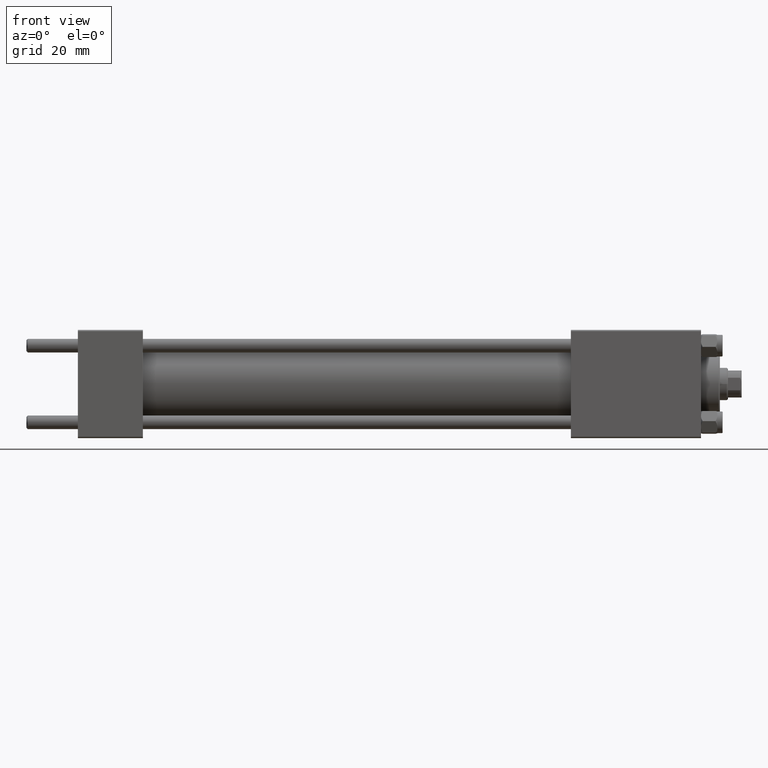
[diagram: clean part render]
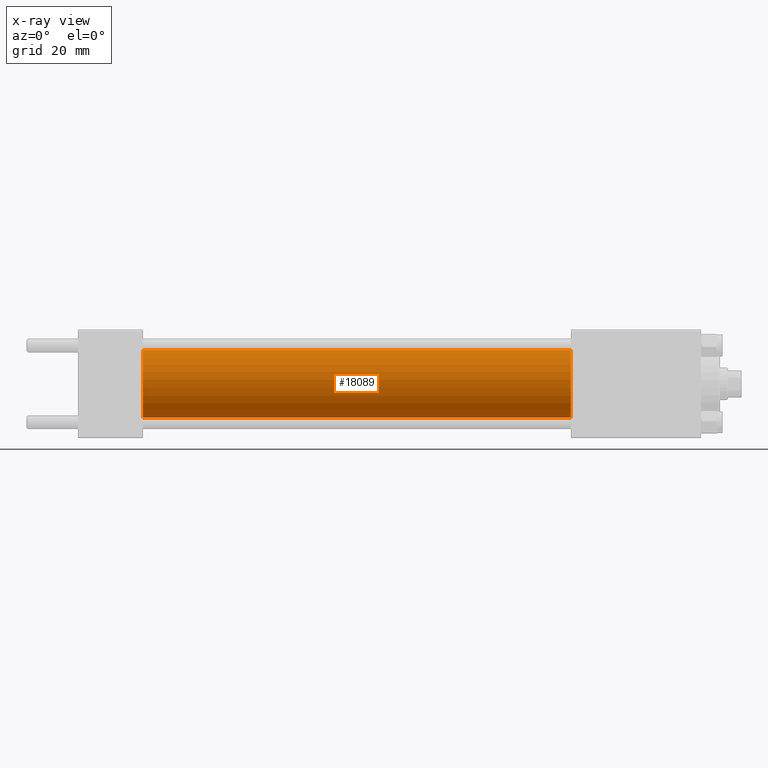
[diagram: x-ray — body ghosted, one internal face saturated and labeled with its STEP entity id]
A machine part, front view, then the same camera in x-ray: the body is ghosted and one INTERNAL B-rep face — a face not visible from any outside direction — is saturated and labeled: STEP entity #18089.
In plain terms, the highlighted cylindrical surface (edge-blend (fillet) strip) has radius 12.5 mm, axis along (-1, -0, -0).
Its self-contained STEP definition (entity closure, byte-faithful):
#918 = DIRECTION ( 'NONE',  ( 1.000000000000000000, 0.000000000000000000, 0.000000000000000000 ) ) ;
#1437 = DIRECTION ( 'NONE',  ( 0.000000000000000000, 0.000000000000000000, -1.000000000000000000 ) ) ;
#1684 = EDGE_LOOP ( 'NONE', ( #39599, #41087, #23873, #14809 ) ) ;
#5941 = VECTOR ( 'NONE', #21747, 1000.000000000000000 ) ;
#8893 = CARTESIAN_POINT ( 'NONE',  ( 182.0000000000000000, 0.000000000000000000, 12.49999999999999645 ) ) ;
#10117 = CARTESIAN_POINT ( 'NONE',  ( 182.0000000000000000, 1.530808498934191127E-15, -12.49999999999999645 ) ) ;
#13304 = CIRCLE ( 'NONE', #41532, 12.49999999999999645 ) ;
#14809 = ORIENTED_EDGE ( 'NONE', *, *, #42363, .F. ) ;
#18089 = ADVANCED_FACE ( 'NONE', ( #36928 ), #33143, .F. ) ;
#18799 = VERTEX_POINT ( 'NONE', #44380 ) ;
#19224 = VERTEX_POINT ( 'NONE', #10117 ) ;
#19502 = EDGE_CURVE ( 'NONE', #19224, #22353, #43635, .T. ) ;
#19914 = EDGE_CURVE ( 'NONE', #18799, #19224, #13304, .T. ) ;
#21081 = AXIS2_PLACEMENT_3D ( 'NONE', #26292, #44990, #37657 ) ;
#21747 = DIRECTION ( 'NONE',  ( -1.000000000000000000, -0.000000000000000000, -0.000000000000000000 ) ) ;
#21955 = CARTESIAN_POINT ( 'NONE',  ( 24.00000000000000000, 1.530808498934191127E-15, -12.49999999999999645 ) ) ;
#22353 = VERTEX_POINT ( 'NONE', #21955 ) ;
#23873 = ORIENTED_EDGE ( 'NONE', *, *, #33208, .F. ) ;
#26292 = CARTESIAN_POINT ( 'NONE',  ( 24.00000000000000000, 0.000000000000000000, 0.000000000000000000 ) ) ;
#29801 = CARTESIAN_POINT ( 'NONE',  ( 24.00000000000000000, 0.000000000000000000, 12.49999999999999645 ) ) ;
#33143 = CYLINDRICAL_SURFACE ( 'NONE', #38257, 12.49999999999999645 ) ;
#33208 = EDGE_CURVE ( 'NONE', #37665, #22353, #42833, .T. ) ;
#36073 = DIRECTION ( 'NONE',  ( -1.000000000000000000, -0.000000000000000000, -0.000000000000000000 ) ) ;
#36928 = FACE_OUTER_BOUND ( 'NONE', #1684, .T. ) ;
#37657 = DIRECTION ( 'NONE',  ( 0.000000000000000000, 0.000000000000000000, -1.000000000000000000 ) ) ;
#37665 = VERTEX_POINT ( 'NONE', #29801 ) ;
#38257 = AXIS2_PLACEMENT_3D ( 'NONE', #44999, #40968, #41468 ) ;
#39543 = CARTESIAN_POINT ( 'NONE',  ( 182.0000000000000000, 0.000000000000000000, 0.000000000000000000 ) ) ;
#39599 = ORIENTED_EDGE ( 'NONE', *, *, #19914, .T. ) ;
#40968 = DIRECTION ( 'NONE',  ( -1.000000000000000000, -0.000000000000000000, -0.000000000000000000 ) ) ;
#41087 = ORIENTED_EDGE ( 'NONE', *, *, #19502, .T. ) ;
#41468 = DIRECTION ( 'NONE',  ( 0.000000000000000000, 0.000000000000000000, 1.000000000000000000 ) ) ;
#41532 = AXIS2_PLACEMENT_3D ( 'NONE', #39543, #918, #1437 ) ;
#42363 = EDGE_CURVE ( 'NONE', #18799, #37665, #43474, .T. ) ;
#42833 = CIRCLE ( 'NONE', #21081, 12.49999999999999645 ) ;
#43474 = LINE ( 'NONE', #8893, #5941 ) ;
#43635 = LINE ( 'NONE', #47949, #47992 ) ;
#44380 = CARTESIAN_POINT ( 'NONE',  ( 182.0000000000000000, 0.000000000000000000, 12.49999999999999645 ) ) ;
#44990 = DIRECTION ( 'NONE',  ( 1.000000000000000000, 0.000000000000000000, 0.000000000000000000 ) ) ;
#44999 = CARTESIAN_POINT ( 'NONE',  ( 182.0000000000000000, 0.000000000000000000, 0.000000000000000000 ) ) ;
#47949 = CARTESIAN_POINT ( 'NONE',  ( 182.0000000000000000, 1.530808498934191127E-15, -12.49999999999999645 ) ) ;
#47992 = VECTOR ( 'NONE', #36073, 1000.000000000000000 ) ;